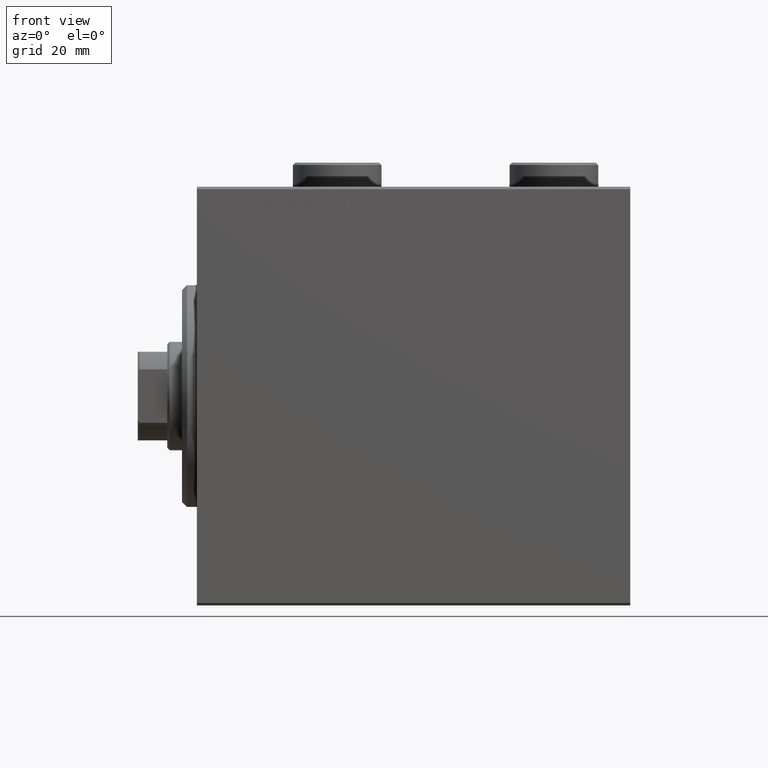
[diagram: clean part render]
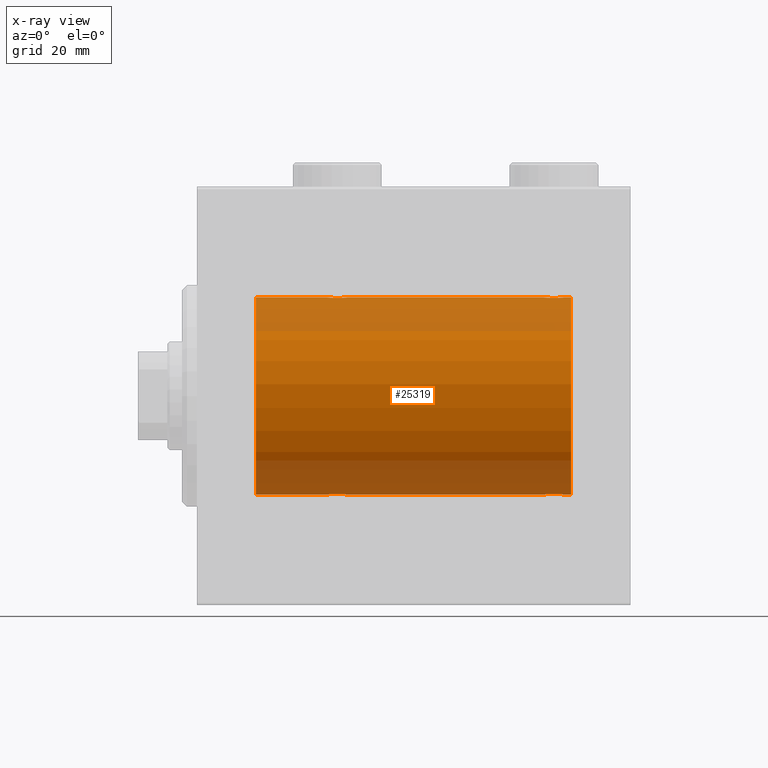
[diagram: x-ray — body ghosted, one internal face saturated and labeled with its STEP entity id]
A machine part, front view, then the same camera in x-ray: the body is ghosted and one INTERNAL B-rep face — a face not visible from any outside direction — is saturated and labeled: STEP entity #25319.
In plain terms, the highlighted cylindrical surface (partial cylindrical patch) has radius 20 mm, axis along (-1, -0, -0).
Its self-contained STEP definition (entity closure, byte-faithful):
#399 = EDGE_CURVE ( 'NONE', #30265, #13605, #24224, .T. ) ;
#466 = VERTEX_POINT ( 'NONE', #30916 ) ;
#467 = CARTESIAN_POINT ( 'NONE',  ( 28.63058871710834552, -2.000100592782553921, 19.89973863218035888 ) ) ;
#1984 = CARTESIAN_POINT ( 'NONE',  ( 26.75313023696928738, -1.008108445278687704, -19.97602680192586533 ) ) ;
#2010 = CARTESIAN_POINT ( 'NONE',  ( 74.50000000000000000, -0.2644051013330985245, 19.99999999999999645 ) ) ;
#2425 = B_SPLINE_CURVE_WITH_KNOTS ( 'NONE', 3,
 ( #29191, #22970, #15824, #37011, #12138, #11677, #11914, #40013, #26189, #5201, #32874, #8447, #26416, #36782, #40471, #22508, #5430, #25727, #19515, #15363, #33333, #33558, #1984, #36551, #16056, #25498 ),
 .UNSPECIFIED., .F., .F.,
 ( 4, 2, 2, 2, 2, 2, 2, 2, 2, 2, 2, 2, 4 ),
 ( 0.006256819553329842284, 0.007038738568778818427, 0.007820657584227792836, 0.008211617091952278305, 0.008602576599676762040, 0.008993536107401245774, 0.009384495615125729509, 0.009775455122850213244, 0.01016641463057469871, 0.01055737413829918071, 0.01094833364602366618, 0.01173025266147263365, 0.01251217167692159939 ),
 .UNSPECIFIED. ) ;
#2681 = VERTEX_POINT ( 'NONE', #3598 ) ;
#2921 = CARTESIAN_POINT ( 'NONE',  ( 74.24686976303074459, -1.008108445278681931, 19.97602680192586178 ) ) ;
#3598 = CARTESIAN_POINT ( 'NONE',  ( 76.00000000000000000, 2.449293598294706513E-15, -20.00000000000000000 ) ) ;
#3605 = CARTESIAN_POINT ( 'NONE',  ( 73.01923512135279282, -1.935816449315126642, -19.90611141657402072 ) ) ;
#3922 = CARTESIAN_POINT ( 'NONE',  ( 26.55244937117492299, -0.5243189001515023984, 19.99457699142850586 ) ) ;
#3951 = DIRECTION ( 'NONE',  ( 0.000000000000000000, 0.000000000000000000, 1.000000000000000000 ) ) ;
#4016 = VECTOR ( 'NONE', #6221, 1000.000000000000000 ) ;
#4144 = CARTESIAN_POINT ( 'NONE',  ( 29.71805419472152110, -1.591668229360196252, 19.93669678979812332 ) ) ;
#4283 = EDGE_CURVE ( 'NONE', #466, #7408, #15482, .T. ) ;
#4711 = CARTESIAN_POINT ( 'NONE',  ( 71.85651471266959334, -1.898187925611341198, -19.90978194174746818 ) ) ;
#5176 = ORIENTED_EDGE ( 'NONE', *, *, #4283, .T. ) ;
#5201 = CARTESIAN_POINT ( 'NONE',  ( 29.14630673924643744, -1.897222639860594029, -19.90987429971496780 ) ) ;
#5430 = CARTESIAN_POINT ( 'NONE',  ( 27.85651471266959334, -1.898187925611338533, -19.90978194174746818 ) ) ;
#5671 = ORIENTED_EDGE ( 'NONE', *, *, #32903, .T. ) ;
#5932 = ORIENTED_EDGE ( 'NONE', *, *, #40777, .F. ) ;
#5997 = LINE ( 'NONE', #20070, #4016 ) ;
#6221 = DIRECTION ( 'NONE',  ( -1.000000000000000000, -0.000000000000000000, -0.000000000000000000 ) ) ;
#6377 = CARTESIAN_POINT ( 'NONE',  ( 72.63058871710832420, -2.000100592782551256, 19.89973863218035888 ) ) ;
#6433 = FACE_OUTER_BOUND ( 'NONE', #9870, .T. ) ;
#6487 = CARTESIAN_POINT ( 'NONE',  ( 11.99999999999999645, 2.449293598294706513E-15, -20.00000000000000000 ) ) ;
#6562 = CIRCLE ( 'NONE', #7999, 20.00000000000000000 ) ;
#6934 = VERTEX_POINT ( 'NONE', #24030 ) ;
#7293 = CARTESIAN_POINT ( 'NONE',  ( 71.17903093152709459, -1.507328959728491791, -19.94333197382385592 ) ) ;
#7408 = VERTEX_POINT ( 'NONE', #29011 ) ;
#7999 = AXIS2_PLACEMENT_3D ( 'NONE', #45466, #24274, #3951 ) ;
#8089 = DIRECTION ( 'NONE',  ( 0.000000000000000000, 0.000000000000000000, 1.000000000000000000 ) ) ;
#8302 = CARTESIAN_POINT ( 'NONE',  ( 27.17693331080528907, -1.505486175075773758, 19.94347168299867690 ) ) ;
#8447 = CARTESIAN_POINT ( 'NONE',  ( 28.76358144091416236, -1.986835489085814199, -19.90108393514801222 ) ) ;
#9339 = CARTESIAN_POINT ( 'NONE',  ( 76.00000000000000000, 0.000000000000000000, 20.00000000000000000 ) ) ;
#9375 = ORIENTED_EDGE ( 'NONE', *, *, #17543, .F. ) ;
#9393 = CARTESIAN_POINT ( 'NONE',  ( 74.50000000000001421, 9.984436361108698300E-16, 20.00000000000000000 ) ) ;
#9608 = VERTEX_POINT ( 'NONE', #13615 ) ;
#9625 = CARTESIAN_POINT ( 'NONE',  ( 70.90058475115969827, -1.228758402364240609, 19.96307487248084911 ) ) ;
#9632 = CARTESIAN_POINT ( 'NONE',  ( 74.50000000000001421, 2.449293582762867932E-15, -20.00000000000000000 ) ) ;
#9852 = CARTESIAN_POINT ( 'NONE',  ( 72.36634803857555198, -1.999898234284061216, 19.89975896996866922 ) ) ;
#9870 = EDGE_LOOP ( 'NONE', ( #37244, #17210, #14370, #5176, #24008, #13542, #5671, #33143, #28257, #9375, #12871, #5932 ) ) ;
#10310 = CARTESIAN_POINT ( 'NONE',  ( 73.38829437207093065, -1.796691196322316886, -19.91919800395357143 ) ) ;
#10538 = CARTESIAN_POINT ( 'NONE',  ( 72.63365196142451907, -1.999898234284062104, -19.89975896996866211 ) ) ;
#10763 = CARTESIAN_POINT ( 'NONE',  ( 71.61420923329269783, -1.797933656607920039, -19.91908554465557657 ) ) ;
#11307 = CARTESIAN_POINT ( 'NONE',  ( 30.24686976303072328, -1.008108445278687926, 19.97602680192586888 ) ) ;
#11652 = CARTESIAN_POINT ( 'NONE',  ( 70.50000000000000000, -5.133775462521235346E-15, -20.00000000000000000 ) ) ;
#11677 = CARTESIAN_POINT ( 'NONE',  ( 29.82306668919470383, -1.505486175075772870, -19.94347168299867334 ) ) ;
#11914 = CARTESIAN_POINT ( 'NONE',  ( 29.72028945794465571, -1.589957321664208223, -19.93683391378736047 ) ) ;
#12129 = DIRECTION ( 'NONE',  ( -1.000000000000000000, -0.000000000000000000, -0.000000000000000000 ) ) ;
#12138 = CARTESIAN_POINT ( 'NONE',  ( 30.09941524884030173, -1.228758402364235502, -19.96307487248084911 ) ) ;
#12755 = VECTOR ( 'NONE', #34383, 1000.000000000000000 ) ;
#12871 = ORIENTED_EDGE ( 'NONE', *, *, #14011, .T. ) ;
#13317 = CARTESIAN_POINT ( 'NONE',  ( 70.50000000000004263, -0.2610801504281927699, 20.00000000000000355 ) ) ;
#13542 = ORIENTED_EDGE ( 'NONE', *, *, #399, .T. ) ;
#13605 = VERTEX_POINT ( 'NONE', #6487 ) ;
#13615 = CARTESIAN_POINT ( 'NONE',  ( 74.50000000000001421, 9.984436361108698300E-16, 20.00000000000000000 ) ) ;
#14011 = EDGE_CURVE ( 'NONE', #26330, #9608, #25371, .T. ) ;
#14370 = ORIENTED_EDGE ( 'NONE', *, *, #31427, .T. ) ;
#14765 = CARTESIAN_POINT ( 'NONE',  ( 27.61170562792909422, -1.796691196322319994, 19.91919800395357143 ) ) ;
#15363 = CARTESIAN_POINT ( 'NONE',  ( 27.28194580527848601, -1.591668229360197140, -19.93669678979812332 ) ) ;
#15482 = LINE ( 'NONE', #29543, #27882 ) ;
#15824 = CARTESIAN_POINT ( 'NONE',  ( 30.44755062882508412, -0.5243189001514996228, -19.99457699142849876 ) ) ;
#16056 = CARTESIAN_POINT ( 'NONE',  ( 26.50000000000001066, -0.2644051013331030209, -20.00000000000000355 ) ) ;
#16085 = CARTESIAN_POINT ( 'NONE',  ( 70.55244937117491588, -0.5243189001515019543, 19.99457699142849876 ) ) ;
#16676 = CARTESIAN_POINT ( 'NONE',  ( 76.00000000000000000, 0.000000000000000000, 20.00000000000000000 ) ) ;
#16765 = CARTESIAN_POINT ( 'NONE',  ( 71.98076487864723561, -1.935816449315123977, 19.90611141657402072 ) ) ;
#17210 = ORIENTED_EDGE ( 'NONE', *, *, #27219, .T. ) ;
#17419 = VECTOR ( 'NONE', #19716, 1000.000000000000000 ) ;
#17543 = EDGE_CURVE ( 'NONE', #26330, #36312, #27249, .T. ) ;
#17776 = DIRECTION ( 'NONE',  ( -1.000000000000000000, -0.000000000000000000, -0.000000000000000000 ) ) ;
#18007 = CARTESIAN_POINT ( 'NONE',  ( 26.75174086539981033, -1.005710574260841206, 19.97614991974274190 ) ) ;
#18223 = CARTESIAN_POINT ( 'NONE',  ( 29.82096906847289119, -1.507328959728493567, 19.94333197382385592 ) ) ;
#18450 = CARTESIAN_POINT ( 'NONE',  ( 30.49999999999999289, -0.2644051013330969702, 20.00000000000000711 ) ) ;
#18817 = LINE ( 'NONE', #32865, #35319 ) ;
#18905 = CARTESIAN_POINT ( 'NONE',  ( 28.23641855908585541, -1.986835489085814643, 19.90108393514801222 ) ) ;
#19515 = CARTESIAN_POINT ( 'NONE',  ( 27.49932780860757475, -1.736582545981376180, -19.92459705242981371 ) ) ;
#19716 = DIRECTION ( 'NONE',  ( -1.000000000000000000, -0.000000000000000000, -0.000000000000000000 ) ) ;
#19767 = CARTESIAN_POINT ( 'NONE',  ( 73.01648532918906653, -1.936551476643001202, 19.90603968831098669 ) ) ;
#20070 = CARTESIAN_POINT ( 'NONE',  ( 76.00000000000000000, 2.449293598294706513E-15, -20.00000000000000000 ) ) ;
#20180 = EDGE_CURVE ( 'NONE', #7408, #30265, #2425, .T. ) ;
#20222 = CARTESIAN_POINT ( 'NONE',  ( 73.50067219139243946, -1.736582545981368852, 19.92459705242980661 ) ) ;
#20445 = CARTESIAN_POINT ( 'NONE',  ( 73.14348528733046351, -1.898187925611334315, 19.90978194174746818 ) ) ;
#21138 = CARTESIAN_POINT ( 'NONE',  ( 71.98351467081099031, -1.936551476643008529, -19.90603968831099024 ) ) ;
#21348 = VERTEX_POINT ( 'NONE', #37659 ) ;
#21360 = CARTESIAN_POINT ( 'NONE',  ( 70.55320515808200810, -0.5270924491156711023, -19.99450181871975474 ) ) ;
#21672 = CARTESIAN_POINT ( 'NONE',  ( 29.14348528733041377, -1.898187925611340088, 19.90978194174746818 ) ) ;
#22360 = CARTESIAN_POINT ( 'NONE',  ( 27.27971054205535850, -1.589957321664211998, 19.93683391378736047 ) ) ;
#22508 = CARTESIAN_POINT ( 'NONE',  ( 27.98351467081095123, -1.936551476643005198, -19.90603968831098314 ) ) ;
#22970 = CARTESIAN_POINT ( 'NONE',  ( 30.49999999999999645, -0.2610801504281900498, -19.99999999999999645 ) ) ;
#23222 = CARTESIAN_POINT ( 'NONE',  ( 72.23641855908587672, -1.986835489085812867, 19.90108393514801577 ) ) ;
#23685 = CARTESIAN_POINT ( 'NONE',  ( 74.44755062882509833, -0.5243189001515005110, -19.99457699142850231 ) ) ;
#24008 = ORIENTED_EDGE ( 'NONE', *, *, #20180, .T. ) ;
#24030 = CARTESIAN_POINT ( 'NONE',  ( 74.50000000000001421, 2.449293582762867932E-15, -20.00000000000000000 ) ) ;
#24224 = LINE ( 'NONE', #31368, #37415 ) ;
#24274 = DIRECTION ( 'NONE',  ( -1.000000000000000000, 0.000000000000000000, 0.000000000000000000 ) ) ;
#24484 = CARTESIAN_POINT ( 'NONE',  ( 26.50000000000000355, -3.809869420541414000E-15, -20.00000000000000000 ) ) ;
#24589 = CARTESIAN_POINT ( 'NONE',  ( 72.36941128289164737, -2.000100592782554809, -19.89973863218035888 ) ) ;
#24797 = CIRCLE ( 'NONE', #34370, 20.00000000000000000 ) ;
#24929 = CARTESIAN_POINT ( 'NONE',  ( 11.99999999999999645, 0.000000000000000000, 0.000000000000000000 ) ) ;
#25231 = EDGE_CURVE ( 'NONE', #43214, #36312, #42087, .T. ) ;
#25319 = ADVANCED_FACE ( 'NONE', ( #6433 ), #37781, .F. ) ;
#25352 = CARTESIAN_POINT ( 'NONE',  ( 30.44679484191797414, -0.5270924491156706582, 19.99450181871975829 ) ) ;
#25371 = B_SPLINE_CURVE_WITH_KNOTS ( 'NONE', 3,
 ( #27130, #13317, #16085, #37729, #9625, #41413, #44875, #27361, #41182, #37949, #16765, #23222, #9852, #6377, #44191, #19767, #20445, #34493, #20222, #34048, #26680, #44645, #2921, #34266, #2010, #9393 ),
 .UNSPECIFIED., .F., .F.,
 ( 4, 2, 2, 2, 2, 2, 2, 2, 2, 2, 2, 2, 4 ),
 ( 0.006256819553329836213, 0.007038738568778784600, 0.007820657584227733855, 0.008211617091952222794, 0.008602576599676711733, 0.008993536107401198937, 0.009384495615125687876, 0.009775455122850176815, 0.01016641463057466402, 0.01055737413829915296, 0.01094833364602364190, 0.01173025266147261630, 0.01251217167692159418 ),
 .UNSPECIFIED. ) ;
#25498 = CARTESIAN_POINT ( 'NONE',  ( 26.50000000000000355, -3.809869420541414000E-15, -20.00000000000000000 ) ) ;
#25577 = CARTESIAN_POINT ( 'NONE',  ( 26.90058475115969827, -1.228758402364236391, 19.96307487248084556 ) ) ;
#25727 = CARTESIAN_POINT ( 'NONE',  ( 27.61420923329272981, -1.797933656607917596, -19.91908554465558367 ) ) ;
#26072 = DIRECTION ( 'NONE',  ( -1.000000000000000000, -0.000000000000000000, -0.000000000000000000 ) ) ;
#26189 = CARTESIAN_POINT ( 'NONE',  ( 29.38829437207091999, -1.796691196322316664, -19.91919800395357143 ) ) ;
#26330 = VERTEX_POINT ( 'NONE', #33367 ) ;
#26416 = CARTESIAN_POINT ( 'NONE',  ( 28.63365196142448355, -1.999898234284062992, -19.89975896996866211 ) ) ;
#26680 = CARTESIAN_POINT ( 'NONE',  ( 73.82096906847290541, -1.507328959728488238, 19.94333197382385947 ) ) ;
#27130 = CARTESIAN_POINT ( 'NONE',  ( 70.50000000000000000, -1.553188236289650144E-23, 20.00000000000000000 ) ) ;
#27219 = EDGE_CURVE ( 'NONE', #2681, #6934, #5997, .T. ) ;
#27249 = LINE ( 'NONE', #41300, #12755 ) ;
#27361 = CARTESIAN_POINT ( 'NONE',  ( 71.49693443660397918, -1.735203193119890352, 19.92471783160910803 ) ) ;
#27817 = CARTESIAN_POINT ( 'NONE',  ( 73.72028945794465926, -1.589957321664207113, -19.93683391378736758 ) ) ;
#27882 = VECTOR ( 'NONE', #26072, 1000.000000000000000 ) ;
#28051 = CARTESIAN_POINT ( 'NONE',  ( 72.76358144091415170, -1.986835489085815309, -19.90108393514801577 ) ) ;
#28257 = ORIENTED_EDGE ( 'NONE', *, *, #25231, .T. ) ;
#28357 = AXIS2_PLACEMENT_3D ( 'NONE', #31559, #45152, #41466 ) ;
#28589 = CARTESIAN_POINT ( 'NONE',  ( 27.85369326075355545, -1.897222639860597360, 19.90987429971497491 ) ) ;
#28820 = CARTESIAN_POINT ( 'NONE',  ( 28.76077256031567586, -1.987205673487810298, 19.90104673894210663 ) ) ;
#29011 = CARTESIAN_POINT ( 'NONE',  ( 30.50000000000000000, 2.449293582768389958E-15, -20.00000000000000000 ) ) ;
#29163 = CARTESIAN_POINT ( 'NONE',  ( 70.50000000000000000, -0.2644051013331069067, -19.99999999999999289 ) ) ;
#29191 = CARTESIAN_POINT ( 'NONE',  ( 30.50000000000000000, 2.449293582768389958E-15, -20.00000000000000000 ) ) ;
#29512 = CARTESIAN_POINT ( 'NONE',  ( 29.01648532918905943, -1.936551476643006753, 19.90603968831098669 ) ) ;
#29543 = CARTESIAN_POINT ( 'NONE',  ( 76.00000000000000000, 2.449293598294706513E-15, -20.00000000000000000 ) ) ;
#30265 = VERTEX_POINT ( 'NONE', #24484 ) ;
#30290 = CARTESIAN_POINT ( 'NONE',  ( 30.50000000000000000, -4.014971335008767791E-15, 20.00000000000000000 ) ) ;
#30688 = B_SPLINE_CURVE_WITH_KNOTS ( 'NONE', 3,
 ( #9632, #31510, #23685, #34500, #31056, #45106, #27817, #41868, #10310, #45563, #3605, #28051, #10538, #24589, #38639, #21138, #4711, #10763, #35613, #42322, #7293, #43212, #42982, #21360, #29163, #11652 ),
 .UNSPECIFIED., .F., .F.,
 ( 4, 2, 2, 2, 2, 2, 2, 2, 2, 2, 2, 2, 4 ),
 ( 0.006256819553329831876, 0.007038738568778780264, 0.007820657584227728651, 0.008211617091952217590, 0.008602576599676706529, 0.008993536107401195467, 0.009384495615125684406, 0.009775455122850173345, 0.01016641463057466055, 0.01055737413829914775, 0.01094833364602363843, 0.01173025266147261284, 0.01251217167692158898 ),
 .UNSPECIFIED. ) ;
#30916 = CARTESIAN_POINT ( 'NONE',  ( 70.50000000000000000, -5.133775462521235346E-15, -20.00000000000000000 ) ) ;
#31056 = CARTESIAN_POINT ( 'NONE',  ( 74.09941524884031594, -1.228758402364235947, -19.96307487248084556 ) ) ;
#31368 = CARTESIAN_POINT ( 'NONE',  ( 76.00000000000000000, 2.449293598294706513E-15, -20.00000000000000000 ) ) ;
#31427 = EDGE_CURVE ( 'NONE', #6934, #466, #30688, .T. ) ;
#31510 = CARTESIAN_POINT ( 'NONE',  ( 74.50000000000002842, -0.2610801504281906049, -19.99999999999999645 ) ) ;
#31559 = CARTESIAN_POINT ( 'NONE',  ( 76.00000000000000000, 0.000000000000000000, 0.000000000000000000 ) ) ;
#31626 = EDGE_CURVE ( 'NONE', #43214, #21348, #40677, .T. ) ;
#32048 = CARTESIAN_POINT ( 'NONE',  ( 27.49693443660397918, -1.735203193119897902, 19.92471783160911158 ) ) ;
#32865 = CARTESIAN_POINT ( 'NONE',  ( 76.00000000000000000, 0.000000000000000000, 20.00000000000000000 ) ) ;
#32874 = CARTESIAN_POINT ( 'NONE',  ( 29.01923512135276795, -1.935816449315124643, -19.90611141657401717 ) ) ;
#32903 = EDGE_CURVE ( 'NONE', #13605, #21348, #24797, .T. ) ;
#32953 = CARTESIAN_POINT ( 'NONE',  ( 28.36634803857552001, -1.999898234284063436, 19.89975896996866211 ) ) ;
#33143 = ORIENTED_EDGE ( 'NONE', *, *, #31626, .F. ) ;
#33333 = CARTESIAN_POINT ( 'NONE',  ( 27.17903093152710525, -1.507328959728492457, -19.94333197382385592 ) ) ;
#33367 = CARTESIAN_POINT ( 'NONE',  ( 70.50000000000000000, -1.553188236289650144E-23, 20.00000000000000000 ) ) ;
#33558 = CARTESIAN_POINT ( 'NONE',  ( 26.90225308445269903, -1.230936344679278260, -19.96293863536309132 ) ) ;
#34048 = CARTESIAN_POINT ( 'NONE',  ( 73.71805419472154597, -1.591668229360190034, 19.93669678979813042 ) ) ;
#34266 = CARTESIAN_POINT ( 'NONE',  ( 74.44679484191796348, -0.5270924491156651071, 19.99450181871975829 ) ) ;
#34370 = AXIS2_PLACEMENT_3D ( 'NONE', #24929, #35739, #8089 ) ;
#34383 = DIRECTION ( 'NONE',  ( -1.000000000000000000, -0.000000000000000000, -0.000000000000000000 ) ) ;
#34493 = CARTESIAN_POINT ( 'NONE',  ( 73.38579076670728796, -1.797933656607910713, 19.91908554465557657 ) ) ;
#34500 = CARTESIAN_POINT ( 'NONE',  ( 74.24825913460018967, -1.005710574260840984, -19.97614991974274901 ) ) ;
#34677 = VERTEX_POINT ( 'NONE', #16676 ) ;
#35319 = VECTOR ( 'NONE', #12129, 1000.000000000000000 ) ;
#35613 = CARTESIAN_POINT ( 'NONE',  ( 71.49932780860757475, -1.736582545981372405, -19.92459705242980661 ) ) ;
#35717 = CARTESIAN_POINT ( 'NONE',  ( 29.50067219139244656, -1.736582545981375292, 19.92459705242981371 ) ) ;
#35739 = DIRECTION ( 'NONE',  ( -1.000000000000000000, 0.000000000000000000, 0.000000000000000000 ) ) ;
#35940 = CARTESIAN_POINT ( 'NONE',  ( 26.50000000000000711, -0.2610801504281929919, 20.00000000000000000 ) ) ;
#36312 = VERTEX_POINT ( 'NONE', #30290 ) ;
#36402 = CARTESIAN_POINT ( 'NONE',  ( 27.98076487864722495, -1.935816449315125087, 19.90611141657401362 ) ) ;
#36551 = CARTESIAN_POINT ( 'NONE',  ( 26.55320515808203297, -0.5270924491156698810, -19.99450181871976184 ) ) ;
#36782 = CARTESIAN_POINT ( 'NONE',  ( 28.36941128289166159, -2.000100592782553921, -19.89973863218036598 ) ) ;
#37011 = CARTESIAN_POINT ( 'NONE',  ( 30.24825913460018612, -1.005710574260838985, -19.97614991974274190 ) ) ;
#37244 = ORIENTED_EDGE ( 'NONE', *, *, #42444, .F. ) ;
#37415 = VECTOR ( 'NONE', #17776, 1000.000000000000000 ) ;
#37659 = CARTESIAN_POINT ( 'NONE',  ( 11.99999999999999645, 0.000000000000000000, 20.00000000000000000 ) ) ;
#37729 = CARTESIAN_POINT ( 'NONE',  ( 70.75174086539982454, -1.005710574260841872, 19.97614991974274190 ) ) ;
#37781 = CYLINDRICAL_SURFACE ( 'NONE', #28357, 20.00000000000000000 ) ;
#37949 = CARTESIAN_POINT ( 'NONE',  ( 71.85369326075358742, -1.897222639860597360, 19.90987429971497491 ) ) ;
#38639 = CARTESIAN_POINT ( 'NONE',  ( 72.23922743968432769, -1.987205673487811630, -19.90104673894211018 ) ) ;
#39407 = CARTESIAN_POINT ( 'NONE',  ( 30.50000000000000000, -4.014971335008767791E-15, 20.00000000000000000 ) ) ;
#39863 = CARTESIAN_POINT ( 'NONE',  ( 26.50000000000000355, -1.552596590610734385E-23, 20.00000000000000000 ) ) ;
#40013 = CARTESIAN_POINT ( 'NONE',  ( 29.50306556339602437, -1.735203193119894349, -19.92471783160910803 ) ) ;
#40471 = CARTESIAN_POINT ( 'NONE',  ( 28.23922743968432059, -1.987205673487808966, -19.90104673894211018 ) ) ;
#40677 = LINE ( 'NONE', #9339, #17419 ) ;
#40777 = EDGE_CURVE ( 'NONE', #34677, #9608, #18817, .T. ) ;
#41182 = CARTESIAN_POINT ( 'NONE',  ( 71.61170562792908356, -1.796691196322320216, 19.91919800395356788 ) ) ;
#41300 = CARTESIAN_POINT ( 'NONE',  ( 76.00000000000000000, 0.000000000000000000, 20.00000000000000000 ) ) ;
#41413 = CARTESIAN_POINT ( 'NONE',  ( 71.17693331080536723, -1.505486175075777311, 19.94347168299868045 ) ) ;
#41466 = DIRECTION ( 'NONE',  ( 0.000000000000000000, 0.000000000000000000, 1.000000000000000000 ) ) ;
#41868 = CARTESIAN_POINT ( 'NONE',  ( 73.50306556339603503, -1.735203193119893461, -19.92471783160911514 ) ) ;
#42087 = B_SPLINE_CURVE_WITH_KNOTS ( 'NONE', 3,
 ( #39863, #35940, #3922, #18007, #25577, #8302, #22360, #32048, #14765, #28589, #36402, #18905, #32953, #467, #28820, #29512, #21672, #43548, #35717, #4144, #18223, #42865, #11307, #25352, #18450, #39407 ),
 .UNSPECIFIED., .F., .F.,
 ( 4, 2, 2, 2, 2, 2, 2, 2, 2, 2, 2, 2, 4 ),
 ( 0.006256819553329811059, 0.007038738568778783733, 0.007820657584227756406, 0.008211617091952238406, 0.008602576599676722141, 0.008993536107401204141, 0.009384495615125686141, 0.009775455122850168141, 0.01016641463057465014, 0.01055737413829913214, 0.01094833364602361414, 0.01173025266147257814, 0.01251217167692154214 ),
 .UNSPECIFIED. ) ;
#42244 = CARTESIAN_POINT ( 'NONE',  ( 26.50000000000000355, -1.552596590610734385E-23, 20.00000000000000000 ) ) ;
#42322 = CARTESIAN_POINT ( 'NONE',  ( 71.28194580527849666, -1.591668229360193143, -19.93669678979812332 ) ) ;
#42444 = EDGE_CURVE ( 'NONE', #2681, #34677, #6562, .T. ) ;
#42865 = CARTESIAN_POINT ( 'NONE',  ( 30.09774691554730097, -1.230936344679278482, 19.96293863536309132 ) ) ;
#42982 = CARTESIAN_POINT ( 'NONE',  ( 70.75313023696928383, -1.008108445278686816, -19.97602680192586178 ) ) ;
#43212 = CARTESIAN_POINT ( 'NONE',  ( 70.90225308445273811, -1.230936344679278038, -19.96293863536309487 ) ) ;
#43214 = VERTEX_POINT ( 'NONE', #42244 ) ;
#43548 = CARTESIAN_POINT ( 'NONE',  ( 29.38579076670729151, -1.797933656607919817, 19.91908554465558367 ) ) ;
#44191 = CARTESIAN_POINT ( 'NONE',  ( 72.76077256031568652, -1.987205673487806967, 19.90104673894210663 ) ) ;
#44645 = CARTESIAN_POINT ( 'NONE',  ( 74.09774691554730452, -1.230936344679272043, 19.96293863536309487 ) ) ;
#44875 = CARTESIAN_POINT ( 'NONE',  ( 71.27971054205536916, -1.589957321664204448, 19.93683391378736403 ) ) ;
#45106 = CARTESIAN_POINT ( 'NONE',  ( 73.82306668919467540, -1.505486175075773758, -19.94347168299867690 ) ) ;
#45152 = DIRECTION ( 'NONE',  ( -1.000000000000000000, -0.000000000000000000, -0.000000000000000000 ) ) ;
#45466 = CARTESIAN_POINT ( 'NONE',  ( 76.00000000000000000, 0.000000000000000000, 0.000000000000000000 ) ) ;
#45563 = CARTESIAN_POINT ( 'NONE',  ( 73.14630673924648363, -1.897222639860595139, -19.90987429971497136 ) ) ;